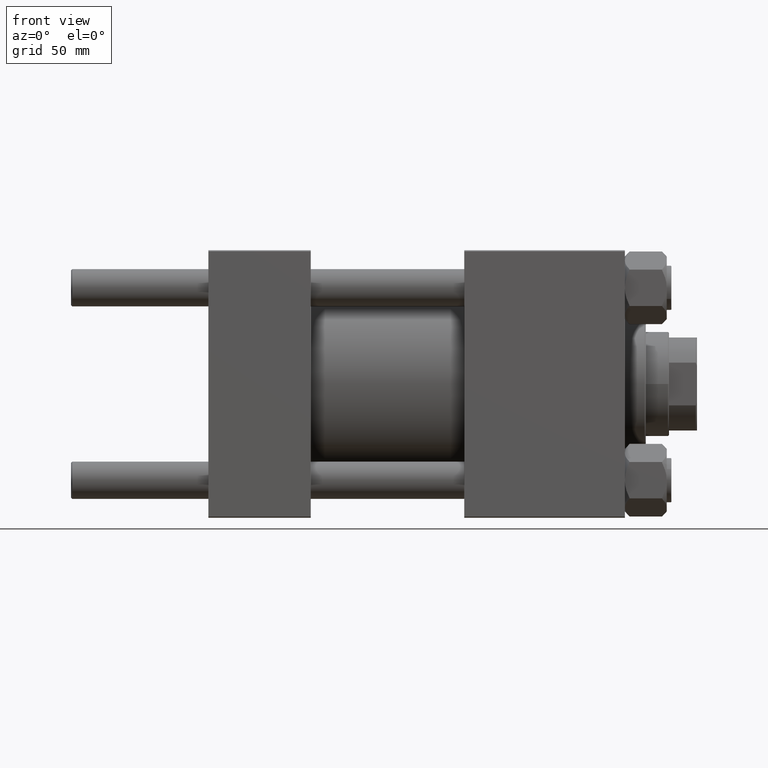
[diagram: clean part render]
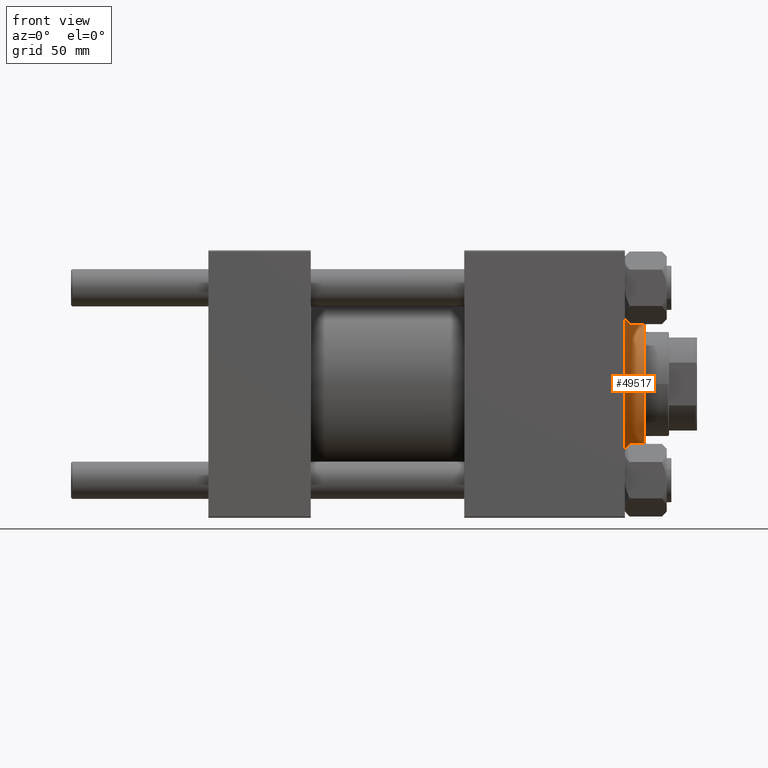
[diagram: same view with one face highlighted and labeled with its STEP entity id]
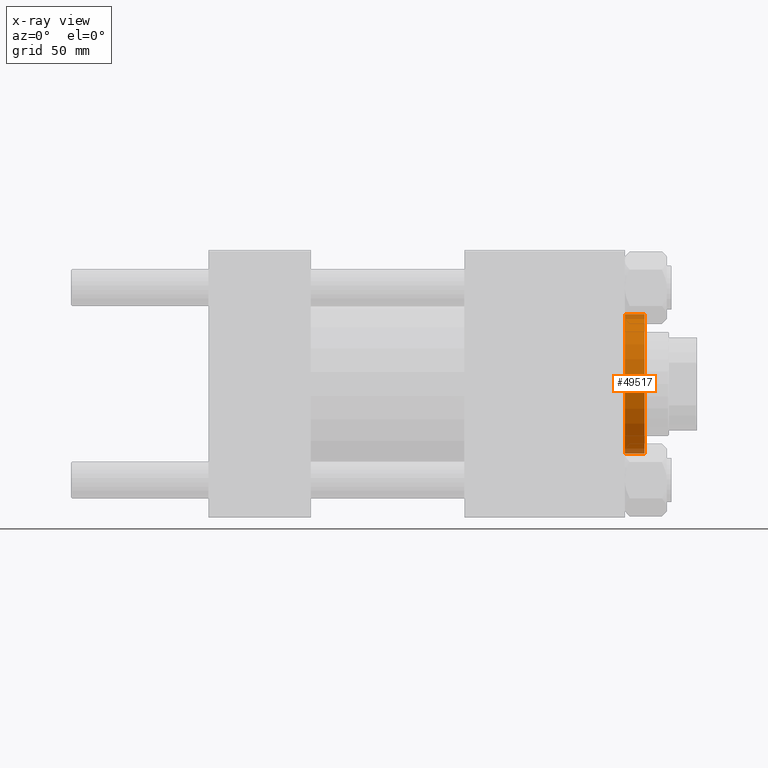
[diagram: x-ray of the same camera — body ghosted, the highlighted face saturated]
A machine part, front view. The second image highlights one B-rep face of the part: STEP entity #49517.
The next image is the same camera in x-ray: the body ghosted, the highlighted face saturated — about 7% of this face is hidden behind the body in this view.
In plain terms, the highlighted cylindrical surface (partial cylindrical patch) has radius 30 mm, axis along (-1, -0, 0).
Its self-contained STEP definition (entity closure, byte-faithful):
#362 = VERTEX_POINT ( 'NONE', #47858 ) ;
#2330 = CARTESIAN_POINT ( 'NONE',  ( 30.00000000000000000, 3.673940397442059178E-15, 28.69999999999999929 ) ) ;
#2890 = ORIENTED_EDGE ( 'NONE', *, *, #32808, .T. ) ;
#4857 = EDGE_CURVE ( 'NONE', #20145, #362, #9721, .T. ) ;
#5665 = DIRECTION ( 'NONE',  ( -0.000000000000000000, -0.000000000000000000, -1.000000000000000000 ) ) ;
#6307 = CARTESIAN_POINT ( 'NONE',  ( -30.00000000000000000, 0.000000000000000000, 37.20000000000000284 ) ) ;
#6348 = FACE_OUTER_BOUND ( 'NONE', #16403, .T. ) ;
#7858 = CARTESIAN_POINT ( 'NONE',  ( 30.00000000000000000, 3.673940397442059178E-15, 37.20000000000000284 ) ) ;
#9041 = VECTOR ( 'NONE', #5665, 1000.000000000000000 ) ;
#9721 = LINE ( 'NONE', #33857, #9041 ) ;
#13713 = CARTESIAN_POINT ( 'NONE',  ( 0.000000000000000000, 0.000000000000000000, 37.69999999999999574 ) ) ;
#14283 = VERTEX_POINT ( 'NONE', #2330 ) ;
#14489 = EDGE_CURVE ( 'NONE', #49751, #14283, #14623, .T. ) ;
#14623 = LINE ( 'NONE', #34708, #45755 ) ;
#15059 = DIRECTION ( 'NONE',  ( 1.000000000000000000, 0.000000000000000000, 0.000000000000000000 ) ) ;
#16403 = EDGE_LOOP ( 'NONE', ( #35689, #2890, #23891, #45477 ) ) ;
#17616 = AXIS2_PLACEMENT_3D ( 'NONE', #13713, #28987, #40653 ) ;
#18687 = DIRECTION ( 'NONE',  ( -0.000000000000000000, -0.000000000000000000, -1.000000000000000000 ) ) ;
#18697 = CIRCLE ( 'NONE', #29310, 30.00000000000000000 ) ;
#18877 = DIRECTION ( 'NONE',  ( 0.000000000000000000, 0.000000000000000000, 1.000000000000000000 ) ) ;
#20145 = VERTEX_POINT ( 'NONE', #6307 ) ;
#21053 = CARTESIAN_POINT ( 'NONE',  ( 0.000000000000000000, 0.000000000000000000, 37.20000000000000284 ) ) ;
#21098 = CYLINDRICAL_SURFACE ( 'NONE', #17616, 30.00000000000000000 ) ;
#23891 = ORIENTED_EDGE ( 'NONE', *, *, #4857, .T. ) ;
#27768 = DIRECTION ( 'NONE',  ( 0.000000000000000000, 0.000000000000000000, -1.000000000000000000 ) ) ;
#28490 = AXIS2_PLACEMENT_3D ( 'NONE', #45543, #18877, #15059 ) ;
#28987 = DIRECTION ( 'NONE',  ( -0.000000000000000000, -0.000000000000000000, -1.000000000000000000 ) ) ;
#29310 = AXIS2_PLACEMENT_3D ( 'NONE', #21053, #27768, #43224 ) ;
#32808 = EDGE_CURVE ( 'NONE', #49751, #20145, #18697, .T. ) ;
#33681 = EDGE_CURVE ( 'NONE', #362, #14283, #34160, .T. ) ;
#33857 = CARTESIAN_POINT ( 'NONE',  ( -30.00000000000000000, 0.000000000000000000, 37.69999999999999574 ) ) ;
#34160 = CIRCLE ( 'NONE', #28490, 30.00000000000000000 ) ;
#34708 = CARTESIAN_POINT ( 'NONE',  ( 30.00000000000000000, 3.673940397442059178E-15, 37.69999999999999574 ) ) ;
#35689 = ORIENTED_EDGE ( 'NONE', *, *, #14489, .F. ) ;
#40653 = DIRECTION ( 'NONE',  ( -1.000000000000000000, 0.000000000000000000, 0.000000000000000000 ) ) ;
#43224 = DIRECTION ( 'NONE',  ( 1.000000000000000000, 0.000000000000000000, 0.000000000000000000 ) ) ;
#45477 = ORIENTED_EDGE ( 'NONE', *, *, #33681, .T. ) ;
#45543 = CARTESIAN_POINT ( 'NONE',  ( 0.000000000000000000, 0.000000000000000000, 28.69999999999999929 ) ) ;
#45755 = VECTOR ( 'NONE', #18687, 1000.000000000000000 ) ;
#47858 = CARTESIAN_POINT ( 'NONE',  ( -30.00000000000000000, 0.000000000000000000, 28.69999999999999929 ) ) ;
#49517 = ADVANCED_FACE ( 'NONE', ( #6348 ), #21098, .T. ) ;
#49751 = VERTEX_POINT ( 'NONE', #7858 ) ;